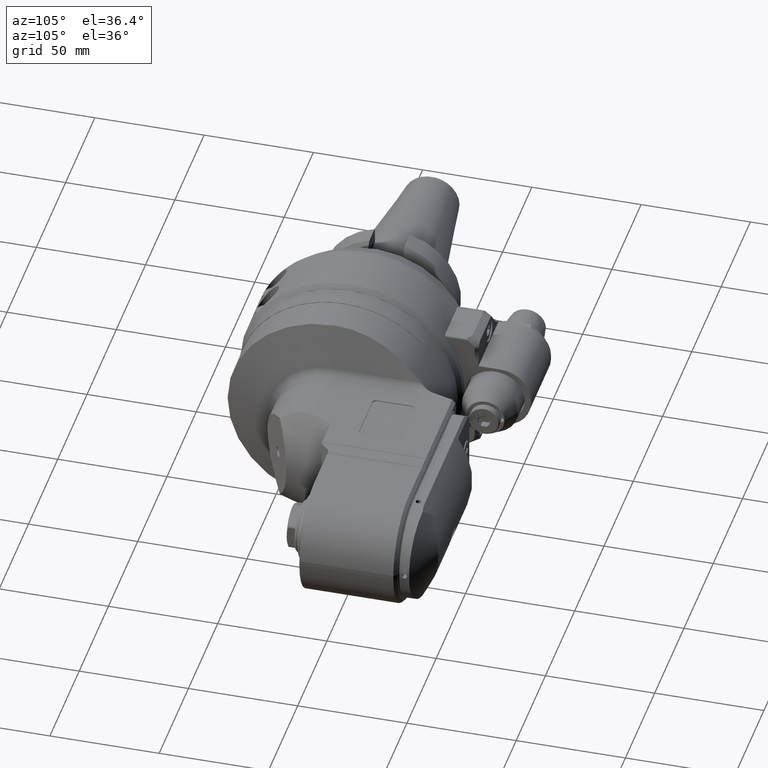
[diagram: clean part render]
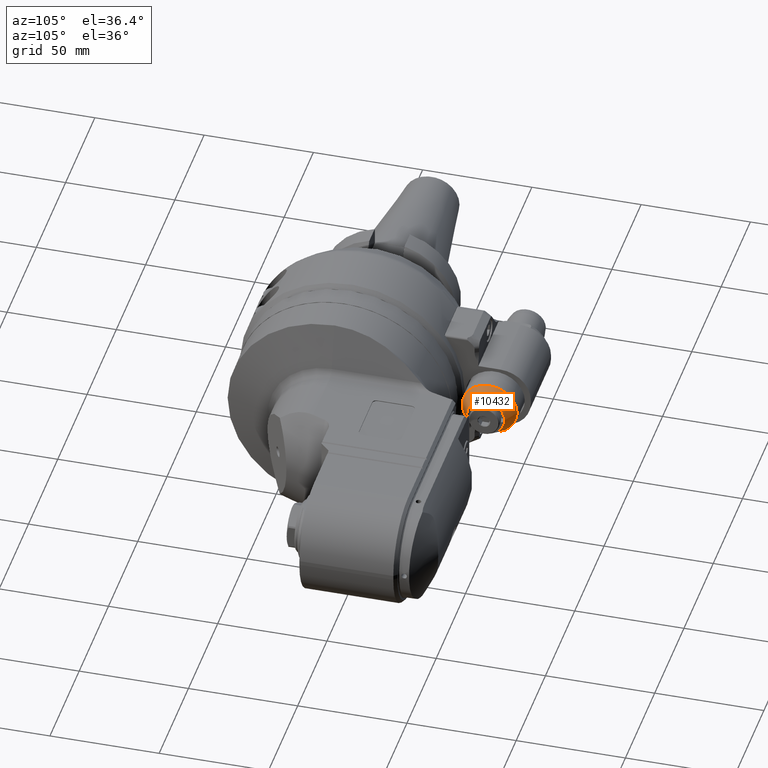
[diagram: same view with one face highlighted and labeled with its STEP entity id]
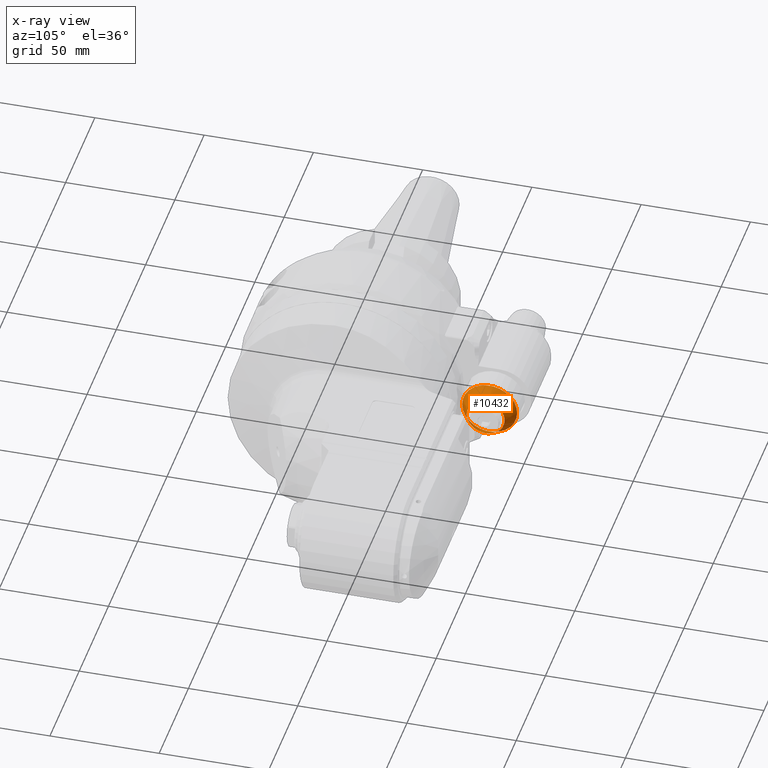
[diagram: x-ray of the same camera — body ghosted, the highlighted face saturated]
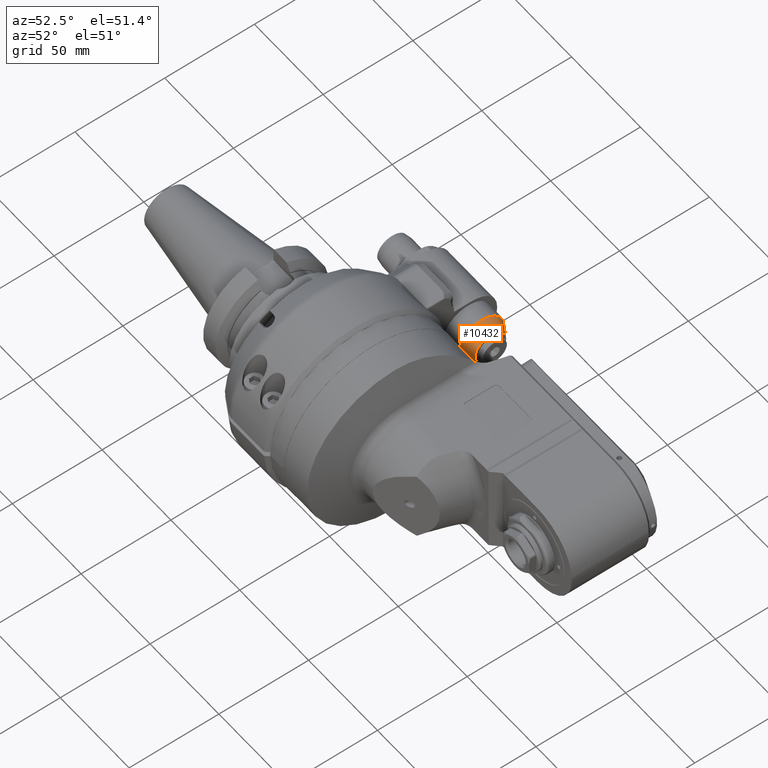
[diagram: same view with one face highlighted and labeled with its STEP entity id]
A machine part, auxiliary view. The second image highlights one B-rep face of the part: STEP entity #10432.
The next image is the same camera in x-ray: the body ghosted, the highlighted face saturated — about 0% of this face is hidden behind the body in this view.
A second angle (auxiliary view) of the same face is appended — the face is thin or edge-on in the first view.
In plain terms, the highlighted conical surface has half-angle 30 deg.
Its self-contained STEP definition (entity closure, byte-faithful):
#876=CIRCLE('',#11516,12.59807621135);
#877=CIRCLE('',#11518,8.669872981078);
#1750=FACE_OUTER_BOUND('',#2481,.T.);
#2481=EDGE_LOOP('',(#8976,#8977,#8978,#8979));
#3387=LINE('',#18121,#4102);
#4102=VECTOR('',#14064,10.63397459622);
#4998=VERTEX_POINT('',#18116);
#4999=VERTEX_POINT('',#18120);
#6368=EDGE_CURVE('',#4998,#4998,#876,.T.);
#6369=EDGE_CURVE('',#4998,#4999,#3387,.T.);
#6370=EDGE_CURVE('',#4999,#4999,#877,.T.);
#8976=ORIENTED_EDGE('',*,*,#6368,.F.);
#8977=ORIENTED_EDGE('',*,*,#6369,.T.);
#8978=ORIENTED_EDGE('',*,*,#6370,.F.);
#8979=ORIENTED_EDGE('',*,*,#6369,.F.);
#9935=CONICAL_SURFACE('',#11517,10.63397459622,0.523598775598299);
#10432=ADVANCED_FACE('',(#1750),#9935,.T.);
#11516=AXIS2_PLACEMENT_3D('',#18118,#14060,#14061);
#11517=AXIS2_PLACEMENT_3D('',#18119,#14062,#14063);
#11518=AXIS2_PLACEMENT_3D('',#18122,#14065,#14066);
#14060=DIRECTION('center_axis',(-1.,0.,0.));
#14061=DIRECTION('ref_axis',(0.,1.,0.));
#14062=DIRECTION('center_axis',(-1.,0.,0.));
#14063=DIRECTION('ref_axis',(0.,-1.,0.));
#14064=DIRECTION('',(0.866025403784439,-0.5,6.12323399573676E-17));
#14065=DIRECTION('center_axis',(1.,0.,0.));
#14066=DIRECTION('ref_axis',(0.,-1.,0.));
#18116=CARTESIAN_POINT('',(-7.303847577293,77.59807621135,0.));
#18118=CARTESIAN_POINT('Origin',(-7.303847577293,65.,0.));
#18119=CARTESIAN_POINT('Origin',(-3.901923788647,65.,0.));
#18120=CARTESIAN_POINT('',(-0.5,73.66987298108,0.));
#18121=CARTESIAN_POINT('',(-3.901923788647,75.63397459622,-1.30228629514751E-15));
#18122=CARTESIAN_POINT('Origin',(-0.5,65.,0.));